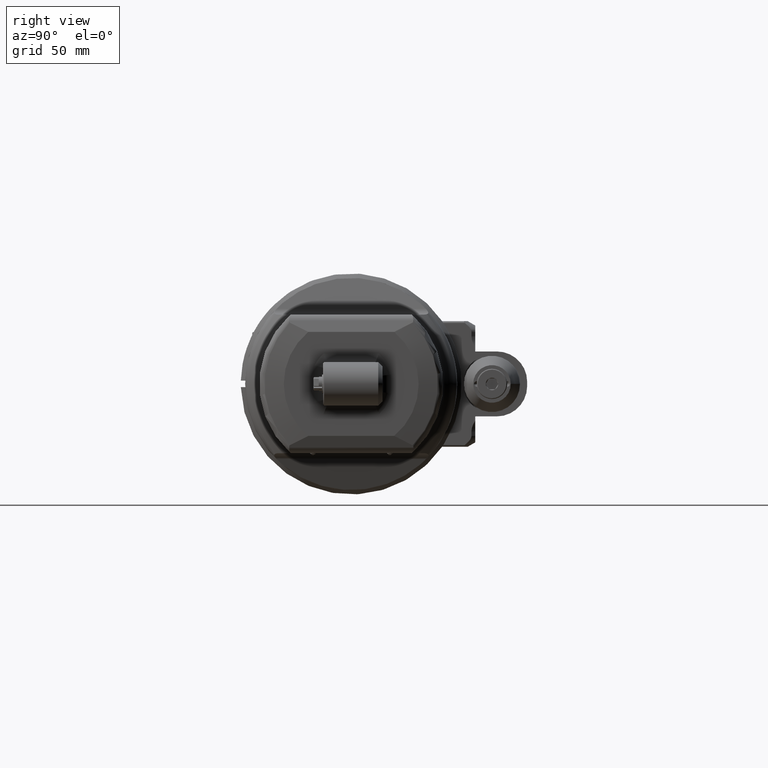
[diagram: clean part render]
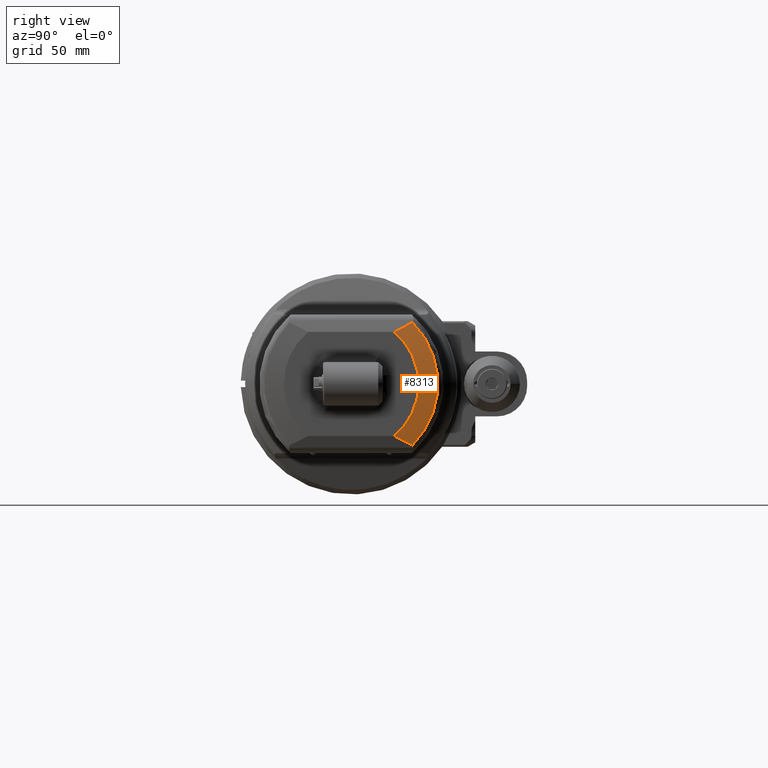
[diagram: same view with one face highlighted and labeled with its STEP entity id]
A machine part, right view. The second image highlights one B-rep face of the part: STEP entity #8313.
In plain terms, the highlighted conical surface has half-angle 80 deg.
Its self-contained STEP definition (entity closure, byte-faithful):
#69=CONICAL_SURFACE('',#9084,35.58919044688,1.39626340159546);
#628=FACE_OUTER_BOUND('',#1128,.T.);
#1128=EDGE_LOOP('',(#5635,#5636,#5637,#5638));
#1692=B_SPLINE_CURVE_WITH_KNOTS('',3,(#12933,#12934,#12935,#12936,#12937,
#12938),.UNSPECIFIED.,.F.,.F.,(4,1,1,4),(0.,0.3333333333333,0.6666666666667,
1.),.UNSPECIFIED.);
#1695=B_SPLINE_CURVE_WITH_KNOTS('',3,(#12961,#12962,#12963,#12964,#12965,
#12966),.UNSPECIFIED.,.F.,.F.,(4,1,1,4),(0.,0.3333333333333,0.6666666666667,
1.),.UNSPECIFIED.);
#2998=CIRCLE('',#9083,40.020944533);
#2999=CIRCLE('',#9085,31.15743636076);
#3452=VERTEX_POINT('',#12930);
#3453=VERTEX_POINT('',#12932);
#3454=VERTEX_POINT('',#12948);
#3455=VERTEX_POINT('',#12959);
#4297=EDGE_CURVE('',#3452,#3453,#1692,.T.);
#4299=EDGE_CURVE('',#3453,#3454,#2998,.T.);
#4301=EDGE_CURVE('',#3455,#3452,#2999,.T.);
#4302=EDGE_CURVE('',#3455,#3454,#1695,.T.);
#5635=ORIENTED_EDGE('',*,*,#4299,.F.);
#5636=ORIENTED_EDGE('',*,*,#4297,.F.);
#5637=ORIENTED_EDGE('',*,*,#4301,.F.);
#5638=ORIENTED_EDGE('',*,*,#4302,.T.);
#8313=ADVANCED_FACE('',(#628),#69,.T.);
#9083=AXIS2_PLACEMENT_3D('',#12949,#10132,#10133);
#9084=AXIS2_PLACEMENT_3D('',#12958,#10134,#10135);
#9085=AXIS2_PLACEMENT_3D('',#12960,#10136,#10137);
#10132=DIRECTION('center_axis',(-1.,0.,0.));
#10133=DIRECTION('ref_axis',(0.,0.706982416412335,0.707231124091535));
#10134=DIRECTION('center_axis',(-1.,0.,0.));
#10135=DIRECTION('ref_axis',(0.,1.,0.));
#10136=DIRECTION('center_axis',(1.,0.,0.));
#10137=DIRECTION('ref_axis',(0.,0.63731240024112,-0.770605544035924));
#12930=CARTESIAN_POINT('',(81.,19.85702055244,24.01009319755));
#12932=CARTESIAN_POINT('',(79.43712436551,28.29410407305,28.30405758928));
#12933=CARTESIAN_POINT('Ctrl Pts',(81.,19.85702055244,24.01009319755));
#12934=CARTESIAN_POINT('Ctrl Pts',(80.83524294191,20.77581115077,24.46275937591));
#12935=CARTESIAN_POINT('Ctrl Pts',(80.49899277148,22.62459753947,25.38659888474));
#12936=CARTESIAN_POINT('Ctrl Pts',(79.97708502463,25.43560304973,26.8205282591));
#12937=CARTESIAN_POINT('Ctrl Pts',(79.61870990008,27.33653612655,27.80515556387));
#12938=CARTESIAN_POINT('Ctrl Pts',(79.43712436551,28.29410407305,28.30405758928));
#12948=CARTESIAN_POINT('',(79.43712436551,28.29410407303,-28.30405758926));
#12949=CARTESIAN_POINT('Origin',(79.43712436551,0.,0.));
#12958=CARTESIAN_POINT('Origin',(80.21856218275,0.,0.));
#12959=CARTESIAN_POINT('',(81.,19.85702055244,-24.01009319755));
#12960=CARTESIAN_POINT('Origin',(81.,0.,0.));
#12961=CARTESIAN_POINT('Ctrl Pts',(81.,19.85702055244,-24.01009319755));
#12962=CARTESIAN_POINT('Ctrl Pts',(80.8462549102,20.71440138148,-24.43250424962));
#12963=CARTESIAN_POINT('Ctrl Pts',(80.52514602592,22.48201056157,-25.31474342754));
#12964=CARTESIAN_POINT('Ctrl Pts',(80.00373261921,25.29356040569,-26.74731461385));
#12965=CARTESIAN_POINT('Ctrl Pts',(79.63022506986,27.27581236074,-27.77351790319));
#12966=CARTESIAN_POINT('Ctrl Pts',(79.43712436551,28.29410407303,-28.30405758926));